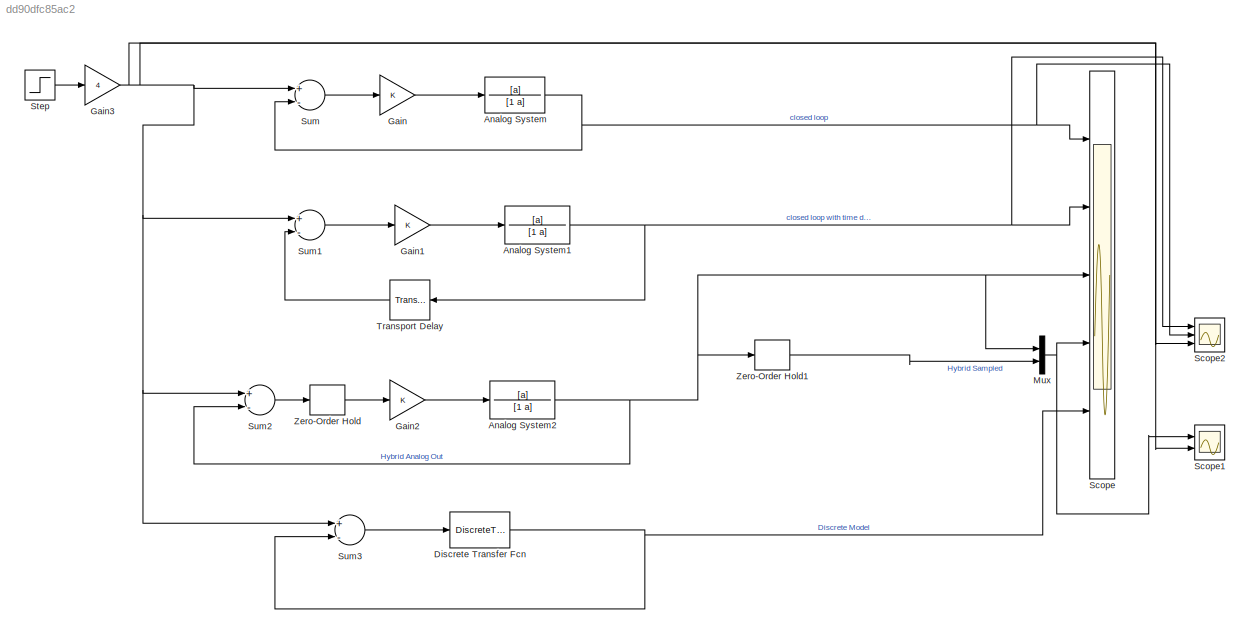
MODEL slx_dd90dfc85ac2
KIND model
CONFIG AbsTol = auto
CONFIG EnableMultiTasking = off
CONFIG FixedStep = Tsim
CONFIG MaxStep = auto
CONFIG MinStep = auto
CONFIG RelTol = 1e-3
CONFIG SampleTimeConstraint = Unconstrained
CONFIG Solver = ode4
CONFIG SolverName = ode4
CONFIG StartTime = 0.0
CONFIG StopTime = 0.1
BLOCK [TransferFcn] Analog System
  Denominator = [1 a]
  Numerator = [a]
BLOCK [TransferFcn] Analog System1
  Denominator = [1 a]
  Numerator = [a]
BLOCK [TransferFcn] Analog System2
  Denominator = [1 a]
  Numerator = [a]
BLOCK [DiscreteTransferFcn] Discrete Transfer Fcn
  Denominator = [1 -zp]
  InputPortMap = u0
  Numerator = [zg]
  Ports = [1, 1]
  SampleTime = T
BLOCK [Gain] Gain
  Gain = K
  OutDataTypeStr = Inherit: Inherit via internal rule
  ParamDataTypeStr = Inherit: Inherit via internal rule
  SaturateOnIntegerOverflow = off
BLOCK [Gain] Gain1
  Gain = K
  OutDataTypeStr = Inherit: Inherit via internal rule
  ParamDataTypeStr = Inherit: Inherit via internal rule
  SaturateOnIntegerOverflow = off
BLOCK [Gain] Gain2
  Gain = K
  OutDataTypeStr = Inherit: Inherit via internal rule
  ParamDataTypeStr = Inherit: Inherit via internal rule
  SaturateOnIntegerOverflow = off
BLOCK [Gain] Gain3
  Gain = 4
  OutDataTypeStr = Inherit: Inherit via internal rule
  ParamDataTypeStr = Inherit: Inherit via internal rule
  SaturateOnIntegerOverflow = off
BLOCK [Mux] Mux
  DisplayOption = bar
  Inputs = 2
  Ports = [2, 1]
BLOCK [Scope] Scope
  NumInputPorts = 5
  Ports = [5]
  ScopeSpecificationString = Simulink.scopes.TimeScopeBlockCfg('CurrentConfiguration', extmgr.ConfigurationSet(extmgr.Configuration('Core','General UI',true),extmgr.Configuration('Core','Source UI',true),extmgr.Configuration('Sources','WiredSimulink',true),extmgr.Configuration('Visuals','Time Domain',true,'SerializedDisplays',{struct('MinYLimReal','-0.24723','MaxYLimReal','2.22503','YLabelReal','','MinYLimMag','0.00000','MaxY...<+5432ch>
BLOCK [Scope] Scope1
  NumInputPorts = 2
  Ports = [2]
  ScopeSpecificationString = Simulink.scopes.TimeScopeBlockCfg('CurrentConfiguration', extmgr.ConfigurationSet(extmgr.Configuration('Core','General UI',true),extmgr.Configuration('Core','Source UI',true),extmgr.Configuration('Sources','WiredSimulink',true,'DataLoggingVariableName','ScopeData1'),extmgr.Configuration('Visuals','Time Domain',true,'SerializedDisplays',{struct('MinYLimReal','2.8989','MaxYLimReal','4.37983','YLabel...<+1467ch>
BLOCK [Scope] Scope2
  NumInputPorts = 3
  Ports = [3]
  ScopeSpecificationString = Simulink.scopes.TimeScopeBlockCfg('CurrentConfiguration', extmgr.ConfigurationSet(extmgr.Configuration('Core','General UI',true),extmgr.Configuration('Core','Source UI',true),extmgr.Configuration('Sources','WiredSimulink',true,'DataLoggingVariableName','ScopeData2'),extmgr.Configuration('Visuals','Time Domain',true,'SerializedDisplays',{struct('MinYLimReal','-0.71028','MaxYLimReal','6.39253','YLab...<+1435ch>
BLOCK [Step] Step
  SampleTime = 0
  Time = .01
BLOCK [Sum] Sum
  InputSameDT = off
  Inputs = +-
  OutDataTypeStr = Inherit: Inherit via internal rule
  Ports = [2, 1]
  SaturateOnIntegerOverflow = off
BLOCK [Sum] Sum1
  InputSameDT = off
  Inputs = +-
  OutDataTypeStr = Inherit: Inherit via internal rule
  Ports = [2, 1]
  SaturateOnIntegerOverflow = off
BLOCK [Sum] Sum2
  InputSameDT = off
  Inputs = +-
  OutDataTypeStr = Inherit: Inherit via internal rule
  Ports = [2, 1]
  SaturateOnIntegerOverflow = off
BLOCK [Sum] Sum3
  InputSameDT = off
  Inputs = +-
  OutDataTypeStr = Inherit: Inherit via internal rule
  Ports = [2, 1]
  SaturateOnIntegerOverflow = off
BLOCK [TransportDelay] Transport Delay
  DelayTime = T
  Ports = [1, 1]
BLOCK [ZeroOrderHold] Zero-Order Hold
  SampleTime = T
BLOCK [ZeroOrderHold] Zero-Order Hold1
  SampleTime = T
NET Analog System1:1 -> Scope2:1, Scope:2, Transport Delay:1
NET Analog System2:1 -> Mux:1, Scope:3, Sum2:2, Zero-Order Hold1:1
NET Analog System:1 -> Scope2:2, Scope:1, Sum:2
NET Discrete Transfer Fcn:1 -> Scope:5, Sum3:2
LINE Gain1:1 -> Analog System1:1
LINE Gain2:1 -> Analog System2:1
NET Gain3:1 -> Scope1:2, Scope2:3, Sum1:1, Sum2:1, Sum3:1, Sum:1
LINE Gain:1 -> Analog System:1
NET Mux:1 -> Scope1:1, Scope:4
LINE Step:1 -> Gain3:1
LINE Sum1:1 -> Gain1:1
LINE Sum2:1 -> Zero-Order Hold:1
LINE Sum3:1 -> Discrete Transfer Fcn:1
LINE Sum:1 -> Gain:1
LINE Transport Delay:1 -> Sum1:2
LINE Zero-Order Hold1:1 -> Mux:2
LINE Zero-Order Hold:1 -> Gain2:1
note: NET lines group one-source signal fan-out (src -> all destinations, sorted); 1:1 wires keep LINE
